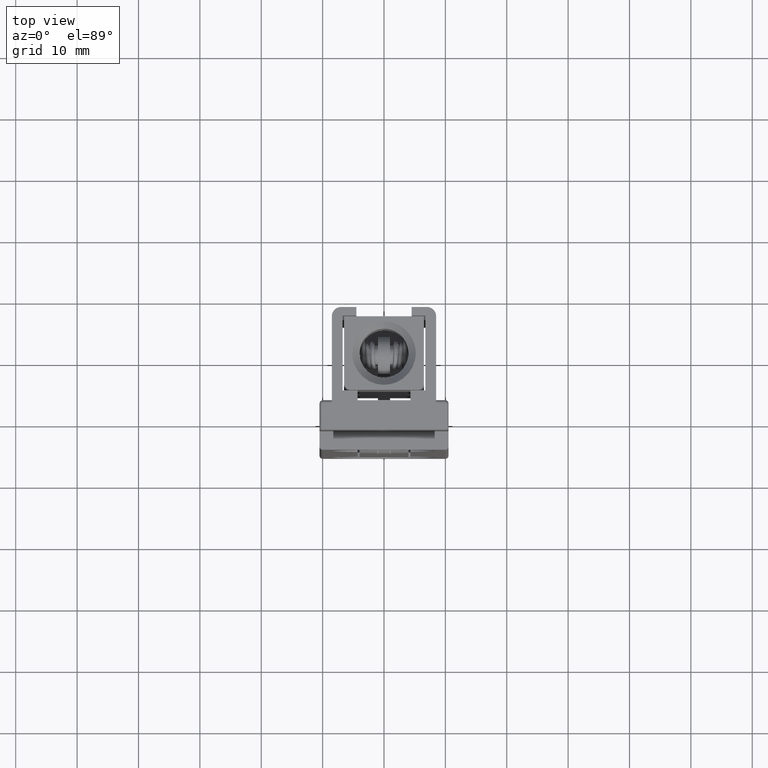
[diagram: clean part render]
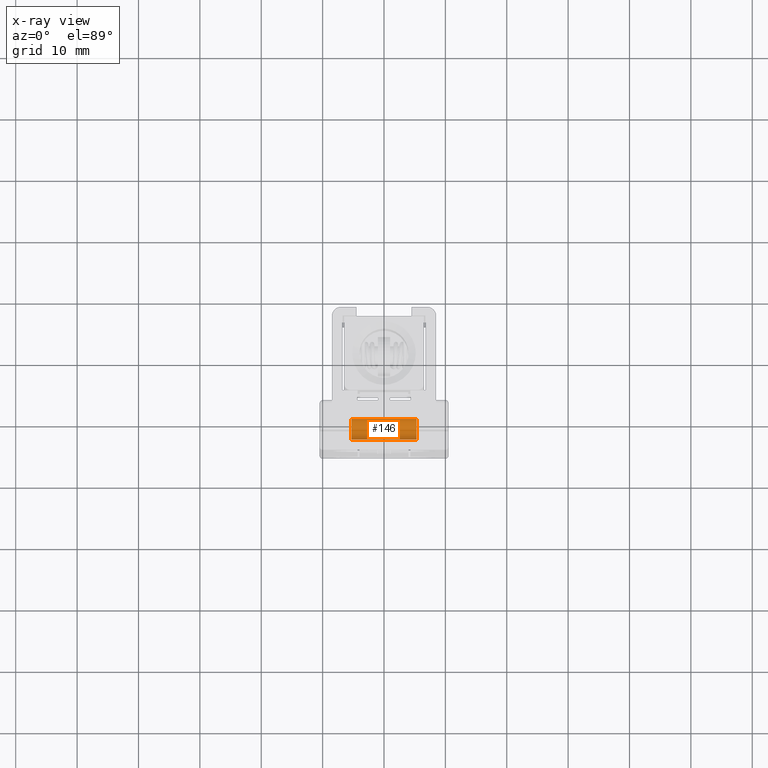
[diagram: x-ray — body ghosted, one internal face saturated and labeled with its STEP entity id]
A machine part, top view, then the same camera in x-ray: the body is ghosted and one INTERNAL B-rep face — a face not visible from any outside direction — is saturated and labeled: STEP entity #146.
In plain terms, the highlighted face is a freeform B-spline surface patch.
Its self-contained STEP definition (entity closure, byte-faithful):
#44=CARTESIAN_POINT('',(5.565000000000004,-9.911883805181766,9.100658198916381));
#45=CARTESIAN_POINT('',(5.565000000000004,-9.906141053737370,9.052345038684452));
#46=CARTESIAN_POINT('',(5.565000000000004,-9.903170842682826,9.003782517209148));
#47=CARTESIAN_POINT('',(5.565000000000004,-9.799388325473569,7.306953359891975));
#48=CARTESIAN_POINT('',(5.565000000000004,-11.496217482790740,7.203170842682717));
#49=CARTESIAN_POINT('',(5.565000000000004,-13.193046640107916,7.099388325473460));
#50=CARTESIAN_POINT('',(5.565000000000004,-13.296829157317170,8.796217482790633));
#51=CARTESIAN_POINT('',(-5.571625000000116,-9.911883805181766,9.100658198916381));
#52=CARTESIAN_POINT('',(-5.571625000000116,-9.906141053737370,9.052345038684452));
#53=CARTESIAN_POINT('',(-5.571625000000116,-9.903170842682826,9.003782517209148));
#54=CARTESIAN_POINT('',(-5.571625000000116,-9.799388325473569,7.306953359891975));
#55=CARTESIAN_POINT('',(-5.571625000000116,-11.496217482790740,7.203170842682717));
#56=CARTESIAN_POINT('',(-5.571625000000116,-13.193046640107916,7.099388325473460));
#57=CARTESIAN_POINT('',(-5.571625000000116,-13.296829157317170,8.796217482790633));
#65=(BOUNDED_SURFACE()B_SPLINE_SURFACE(2,1,((#44,#51),(#45,#52),(#46,#53),(#47,#54),(#48,#55),(#49,#56),(#50,#57)),.UNSPECIFIED.,.F.,.F.,.U.)B_SPLINE_SURFACE_WITH_KNOTS((3,2,2,3),(2,2),(3.078760800517997,3.141592653589793,4.712388980384690,6.283185307179586),(0.0,11.136625000000119),.UNSPECIFIED.)GEOMETRIC_REPRESENTATION_ITEM()RATIONAL_B_SPLINE_SURFACE(((0.977505800795127,0.977505800795127),(0.988284271247462,0.988284271247462),(1.0,1.0),(0.707106781186548,0.707106781186548),(1.0,1.0),(0.707106781186548,0.707106781186548),(1.0,1.0)))REPRESENTATION_ITEM('')SURFACE());
#66=CARTESIAN_POINT('',(5.300000000000001,-9.911883805228181,9.100658199306853));
#67=VERTEX_POINT('',#66);
#68=CARTESIAN_POINT('',(5.300000000000000,-11.600000000000000,7.199999999999891));
#69=VERTEX_POINT('',#68);
#70=CARTESIAN_POINT('',(5.300000000000001,-9.911883805228181,9.100658199306853));
#71=CARTESIAN_POINT('',(5.300000000000001,-9.899999999999999,9.000681003802738));
#72=CARTESIAN_POINT('',(5.300000000000000,-9.899999999999999,8.899999999999890));
#73=CARTESIAN_POINT('',(5.300000000000000,-9.899999999999999,7.199999999999893));
#74=CARTESIAN_POINT('',(5.300000000000000,-11.600000000000000,7.199999999999891));
#82=(BOUNDED_CURVE()B_SPLINE_CURVE(2,(#70,#71,#72,#73,#74),.UNSPECIFIED.,.F.,.U.)B_SPLINE_CURVE_WITH_KNOTS((3,2,3),(0.229562473437461,0.250000000000000,0.500000000000000),.UNSPECIFIED.)CURVE()GEOMETRIC_REPRESENTATION_ITEM()RATIONAL_B_SPLINE_CURVE((0.956026754034643,0.976055948242050,1.0,0.707106781186548,1.0))REPRESENTATION_ITEM(''));
#83=EDGE_CURVE('',#67,#69,#82,.T.);
#84=ORIENTED_EDGE('',*,*,#83,.T.);
#85=CARTESIAN_POINT('',(5.299999999999999,-13.296829140126031,8.796217201718687));
#86=VERTEX_POINT('',#85);
#87=CARTESIAN_POINT('',(5.300000000000000,-11.600000000000000,7.199999999999891));
#88=CARTESIAN_POINT('',(5.300000000000000,-13.199199782949364,7.199999999999892));
#89=CARTESIAN_POINT('',(5.299999999999999,-13.296829140126031,8.796217201718687));
#97=(BOUNDED_CURVE()B_SPLINE_CURVE(2,(#87,#88,#89),.UNSPECIFIED.,.F.,.U.)B_SPLINE_CURVE_WITH_KNOTS((3,3),(0.500000000000000,0.739332905078806),.UNSPECIFIED.)CURVE()GEOMETRIC_REPRESENTATION_ITEM()RATIONAL_B_SPLINE_CURVE((1.0,0.719604060253976,0.976071919161695))REPRESENTATION_ITEM(''));
#98=EDGE_CURVE('',#69,#86,#97,.T.);
#99=ORIENTED_EDGE('',*,*,#98,.T.);
#100=CARTESIAN_POINT('',(-5.300000000000111,-13.296829140126031,8.796217201718687));
#101=VERTEX_POINT('',#100);
#102=CARTESIAN_POINT('',(5.299999999999999,-13.296829140126031,8.796217201718687));
#103=CARTESIAN_POINT('',(-5.300000000000111,-13.296829140126031,8.796217201718687));
#104=QUASI_UNIFORM_CURVE('',1,(#102,#103),.UNSPECIFIED.,.F.,.U.);
#105=EDGE_CURVE('',#86,#101,#104,.T.);
#106=ORIENTED_EDGE('',*,*,#105,.T.);
#107=CARTESIAN_POINT('',(-5.300000000000110,-11.600000000000000,7.199999999999891));
#108=VERTEX_POINT('',#107);
#109=CARTESIAN_POINT('',(-5.300000000000110,-11.600000000000000,7.199999999999891));
#110=CARTESIAN_POINT('',(-5.300000000000110,-13.199199782949364,7.199999999999892));
#111=CARTESIAN_POINT('',(-5.300000000000111,-13.296829140126031,8.796217201718687));
#119=(BOUNDED_CURVE()B_SPLINE_CURVE(2,(#109,#110,#111),.UNSPECIFIED.,.F.,.U.)B_SPLINE_CURVE_WITH_KNOTS((3,3),(0.500000000000000,0.739332905078806),.UNSPECIFIED.)CURVE()GEOMETRIC_REPRESENTATION_ITEM()RATIONAL_B_SPLINE_CURVE((1.0,0.719604060253976,0.976071919161695))REPRESENTATION_ITEM(''));
#120=EDGE_CURVE('',#108,#101,#119,.T.);
#121=ORIENTED_EDGE('',*,*,#120,.F.);
#122=CARTESIAN_POINT('',(-5.300000000000110,-9.911883805228181,9.100658199306853));
#123=VERTEX_POINT('',#122);
#124=CARTESIAN_POINT('',(-5.300000000000109,-9.911883805228181,9.100658199306853));
#125=CARTESIAN_POINT('',(-5.300000000000110,-9.899999999999999,9.000681003802738));
#126=CARTESIAN_POINT('',(-5.300000000000110,-9.899999999999999,8.899999999999890));
#127=CARTESIAN_POINT('',(-5.300000000000110,-9.899999999999999,7.199999999999893));
#128=CARTESIAN_POINT('',(-5.300000000000110,-11.600000000000000,7.199999999999891));
#136=(BOUNDED_CURVE()B_SPLINE_CURVE(2,(#124,#125,#126,#127,#128),.UNSPECIFIED.,.F.,.U.)B_SPLINE_CURVE_WITH_KNOTS((3,2,3),(0.229562473437461,0.250000000000000,0.500000000000000),.UNSPECIFIED.)CURVE()GEOMETRIC_REPRESENTATION_ITEM()RATIONAL_B_SPLINE_CURVE((0.956026754034643,0.976055948242050,1.0,0.707106781186548,1.0))REPRESENTATION_ITEM(''));
#137=EDGE_CURVE('',#123,#108,#136,.T.);
#138=ORIENTED_EDGE('',*,*,#137,.F.);
#139=CARTESIAN_POINT('',(5.300000000000001,-9.911883805228181,9.100658199306853));
#140=CARTESIAN_POINT('',(-5.300000000000110,-9.911883805228181,9.100658199306853));
#141=QUASI_UNIFORM_CURVE('',1,(#139,#140),.UNSPECIFIED.,.F.,.U.);
#142=EDGE_CURVE('',#67,#123,#141,.T.);
#143=ORIENTED_EDGE('',*,*,#142,.F.);
#144=EDGE_LOOP('',(#84,#99,#106,#121,#138,#143));
#145=FACE_OUTER_BOUND('',#144,.T.);
#146=ADVANCED_FACE('',(#145),#65,.T.);